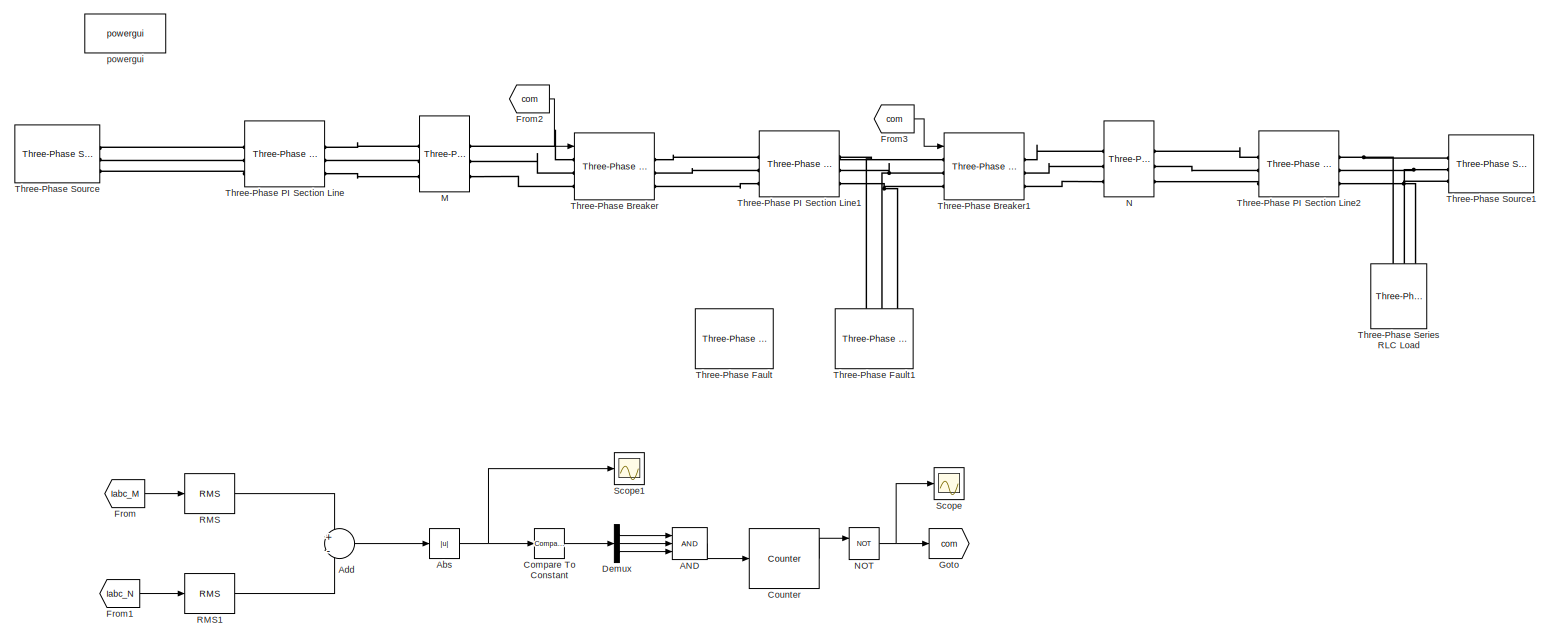
[diagram: root canvas - part 1/1, most of the canvas]
MODEL slx_693cc72e4802
KIND model
CONFIG AbsTol = auto
CONFIG EnableMultiTasking = off
CONFIG FixedStep = auto
CONFIG MaxStep = 1e-4
CONFIG MinStep = auto
CONFIG RelTol = 1e-3
CONFIG SampleTimeConstraint = Unconstrained
CONFIG SolverName = ode23tb
CONFIG StartTime = 0.0
CONFIG StopTime = 1
BLOCK [Logic] AND
  AllPortsSameDT = off
  IconShape = distinctive
  Inputs = 3
  OutDataTypeStr = boolean
BLOCK [Abs] Abs
  SaturateOnIntegerOverflow = off
BLOCK [Sum] Add
  Inputs = +-
BLOCK [Reference] Compare To Constant  REF=simulink/Logic and Bit
Operations/Compare
To Constant
  SourceBlock = simulink/Logic and Bit\nOperations/Compare\nTo Constant
  SourceType = Compare To Constant
BLOCK [Reference] Counter  REF=dspswit3/Counter
  SourceBlock = dspswit3/Counter
  SourceType = Counter
BLOCK [Demux] Demux
  Outputs = 3
BLOCK [From] From
  GotoTag = Iabc_M
  TagVisibility = global
BLOCK [From] From1
  GotoTag = Iabc_N
  TagVisibility = global
BLOCK [From] From2
  GotoTag = com
  NameLocation = top
BLOCK [From] From3
  GotoTag = com
  NameLocation = top
BLOCK [Goto] Goto
  GotoTag = com
BLOCK [Reference] M  REF=spsThreePhaseVIMeasurementLib/Three-Phase
V-I Measurement
  LibrarySourceBlock = sps_lib/Sensors and Measurements/Three-Phase\nV-I Measurement
  SourceBlock = spsThreePhaseVIMeasurementLib/Three-Phase\nV-I Measurement
  SourceType = Three-Phase VI Measurement
BLOCK [Reference] N  REF=spsThreePhaseVIMeasurementLib/Three-Phase
V-I Measurement
  LibrarySourceBlock = sps_lib/Sensors and Measurements/Three-Phase\nV-I Measurement
  SourceBlock = spsThreePhaseVIMeasurementLib/Three-Phase\nV-I Measurement
  SourceType = Three-Phase VI Measurement
BLOCK [Logic] NOT
  AllPortsSameDT = off
  IconShape = distinctive
  Operator = NOT
  OutDataTypeStr = boolean
BLOCK [Reference] RMS  REF=spsRMSLib/RMS
  LibrarySourceBlock = sps_lib/Sensors and Measurements/RMS
  SourceBlock = spsRMSLib/RMS
  SourceType = RMS
BLOCK [Reference] RMS1  REF=spsRMSLib/RMS
  LibrarySourceBlock = sps_lib/Sensors and Measurements/RMS
  SourceBlock = spsRMSLib/RMS
  SourceType = RMS
BLOCK [Scope] Scope
  Floating = off
  NumInputPorts = 1
  ScopeSpecificationString = Simulink.scopes.TimeScopeBlockCfg('CurrentConfiguration', extmgr.ConfigurationSet(extmgr.Configuration('Core','General UI',true),extmgr.Configuration('Core','Source UI',true),extmgr.Configuration('Sources','WiredSimulink',true),extmgr.Configuration('Visuals','Time Domain',true,'SerializedDisplays',{struct('MinYLimReal','-0.125','MaxYLimReal','1.125','YLabelReal','','MinYLimMag','0.00000','MaxYLimM...<+1311ch>
BLOCK [Scope] Scope1
  Floating = off
  NumInputPorts = 1
  ScopeSpecificationString = Simulink.scopes.TimeScopeBlockCfg('CurrentConfiguration', extmgr.ConfigurationSet(extmgr.Configuration('Core','General UI',true),extmgr.Configuration('Core','Source UI',true),extmgr.Configuration('Sources','WiredSimulink',true,'DataLoggingVariableName','ScopeData1'),extmgr.Configuration('Visuals','Time Domain',true,'SerializedDisplays',{struct('MinYLimReal','-285.91716','MaxYLimReal','2573.25448',...<+1398ch>
BLOCK [Reference] Three-Phase Breaker  REF=spsThreePhaseBreakerLib/Three-Phase Breaker
  LibrarySourceBlock = sps_lib/Power Grid Elements/Three-Phase Breaker
  SourceBlock = spsThreePhaseBreakerLib/Three-Phase Breaker
  SourceType = Three-Phase Breaker
BLOCK [Reference] Three-Phase Breaker1  REF=spsThreePhaseBreakerLib/Three-Phase Breaker
  LibrarySourceBlock = sps_lib/Power Grid Elements/Three-Phase Breaker
  SourceBlock = spsThreePhaseBreakerLib/Three-Phase Breaker
  SourceType = Three-Phase Breaker
BLOCK [Reference] Three-Phase Fault  REF=spsThreePhaseFaultLib/Three-Phase Fault
  LibrarySourceBlock = sps_lib/Power Grid Elements/Three-Phase Fault
  NameLocation = left
  SourceBlock = spsThreePhaseFaultLib/Three-Phase Fault
  SourceType = Three-Phase Fault
BLOCK [Reference] Three-Phase Fault1  REF=spsThreePhaseFaultLib/Three-Phase Fault
  LibrarySourceBlock = sps_lib/Power Grid Elements/Three-Phase Fault
  NameLocation = left
  SourceBlock = spsThreePhaseFaultLib/Three-Phase Fault
  SourceType = Three-Phase Fault
BLOCK [Reference] Three-Phase PI Section Line  REF=spsThreePhasePISectionLineLib/Three-Phase
PI Section Line
  AttributesFormatString = \n
  LibrarySourceBlock = sps_lib/Power Grid Elements/Three-Phase\nPI Section Line
  SourceBlock = spsThreePhasePISectionLineLib/Three-Phase\nPI Section Line
  SourceType = Three-Phase PI Section Line
BLOCK [Reference] Three-Phase PI Section Line1  REF=spsThreePhasePISectionLineLib/Three-Phase
PI Section Line
  AttributesFormatString = \n
  LibrarySourceBlock = sps_lib/Power Grid Elements/Three-Phase\nPI Section Line
  SourceBlock = spsThreePhasePISectionLineLib/Three-Phase\nPI Section Line
  SourceType = Three-Phase PI Section Line
BLOCK [Reference] Three-Phase PI Section Line2  REF=spsThreePhasePISectionLineLib/Three-Phase
PI Section Line
  AttributesFormatString = \n
  LibrarySourceBlock = sps_lib/Power Grid Elements/Three-Phase\nPI Section Line
  SourceBlock = spsThreePhasePISectionLineLib/Three-Phase\nPI Section Line
  SourceType = Three-Phase PI Section Line
BLOCK [Reference] Three-Phase Series RLC Load  REF=spsThreePhaseSeriesRLCLoadLib/Three-Phase
Series RLC Load
  AttributesFormatString = \n
  LibrarySourceBlock = sps_lib/Passives/Three-Phase\nSeries RLC Load
  SourceBlock = spsThreePhaseSeriesRLCLoadLib/Three-Phase\nSeries RLC Load
  SourceType = Three-Phase Series RLC Load
BLOCK [Reference] Three-Phase Source  REF=spsThreePhaseSourceLib/Three-Phase Source
  LibrarySourceBlock = sps_lib/Sources/Three-Phase Source
  SourceBlock = spsThreePhaseSourceLib/Three-Phase Source
  SourceType = Three-Phase Source
BLOCK [Reference] Three-Phase Source1  REF=spsThreePhaseSourceLib/Three-Phase Source
  LibrarySourceBlock = sps_lib/Sources/Three-Phase Source
  SourceBlock = spsThreePhaseSourceLib/Three-Phase Source
  SourceType = Three-Phase Source
BLOCK [Reference] powergui  REF=sps_lib/powergui
  Priority = 1
  SourceBlock = sps_lib/powergui
  SourceType = PSB option menu block
LINE AND:1 -> Counter:1
NET Abs:1 -> Compare To Constant:1, Scope1:1
LINE Add:1 -> Abs:1
LINE Compare To Constant:1 -> Demux:1
LINE Counter:1 -> NOT:1
LINE Demux:1 -> AND:1
LINE Demux:2 -> AND:2
LINE Demux:3 -> AND:3
LINE From1:1 -> RMS1:1
LINE From2:1 -> Three-Phase Breaker:1
LINE From3:1 -> Three-Phase Breaker1:1
LINE From:1 -> RMS:1
NET NOT:1 -> Goto:1, Scope:1
LINE RMS1:1 -> Add:2
LINE RMS:1 -> Add:1
PLINE M:LConn1 -- Three-Phase PI Section Line:RConn1
PLINE M:LConn2 -- Three-Phase PI Section Line:RConn2
PLINE M:LConn3 -- Three-Phase PI Section Line:RConn3
PLINE M:RConn1 -- Three-Phase Breaker:LConn1
PLINE M:RConn2 -- Three-Phase Breaker:LConn2
PLINE M:RConn3 -- Three-Phase Breaker:LConn3
PLINE N:LConn1 -- Three-Phase Breaker1:RConn1
PLINE N:LConn2 -- Three-Phase Breaker1:RConn2
PLINE N:LConn3 -- Three-Phase Breaker1:RConn3
PLINE N:RConn1 -- Three-Phase PI Section Line2:LConn1
PLINE N:RConn2 -- Three-Phase PI Section Line2:LConn2
PLINE N:RConn3 -- Three-Phase PI Section Line2:LConn3
PNET net1: Three-Phase Breaker1:LConn1 -- Three-Phase Fault1:LConn1 -- Three-Phase PI Section Line1:RConn1
PNET net2: Three-Phase Breaker1:LConn2 -- Three-Phase Fault1:LConn2 -- Three-Phase PI Section Line1:RConn2
PNET net3: Three-Phase Breaker1:LConn3 -- Three-Phase Fault1:LConn3 -- Three-Phase PI Section Line1:RConn3
PLINE Three-Phase Breaker:RConn1 -- Three-Phase PI Section Line1:LConn1
PLINE Three-Phase Breaker:RConn2 -- Three-Phase PI Section Line1:LConn2
PLINE Three-Phase Breaker:RConn3 -- Three-Phase PI Section Line1:LConn3
PNET net4: Three-Phase PI Section Line2:RConn1 -- Three-Phase Series RLC Load:LConn1 -- Three-Phase Source1:RConn1
PNET net5: Three-Phase PI Section Line2:RConn2 -- Three-Phase Series RLC Load:LConn2 -- Three-Phase Source1:RConn2
PNET net6: Three-Phase PI Section Line2:RConn3 -- Three-Phase Series RLC Load:LConn3 -- Three-Phase Source1:RConn3
PLINE Three-Phase PI Section Line:LConn1 -- Three-Phase Source:RConn1
PLINE Three-Phase PI Section Line:LConn2 -- Three-Phase Source:RConn2
PLINE Three-Phase PI Section Line:LConn3 -- Three-Phase Source:RConn3
note: NET lines group one-source signal fan-out (src -> all destinations, sorted); 1:1 wires keep LINE; PNET lines group multi-terminal physical nets as a canonical sorted terminal list (undirected conserving connections); 2-terminal nets keep the pairwise PLINE form
